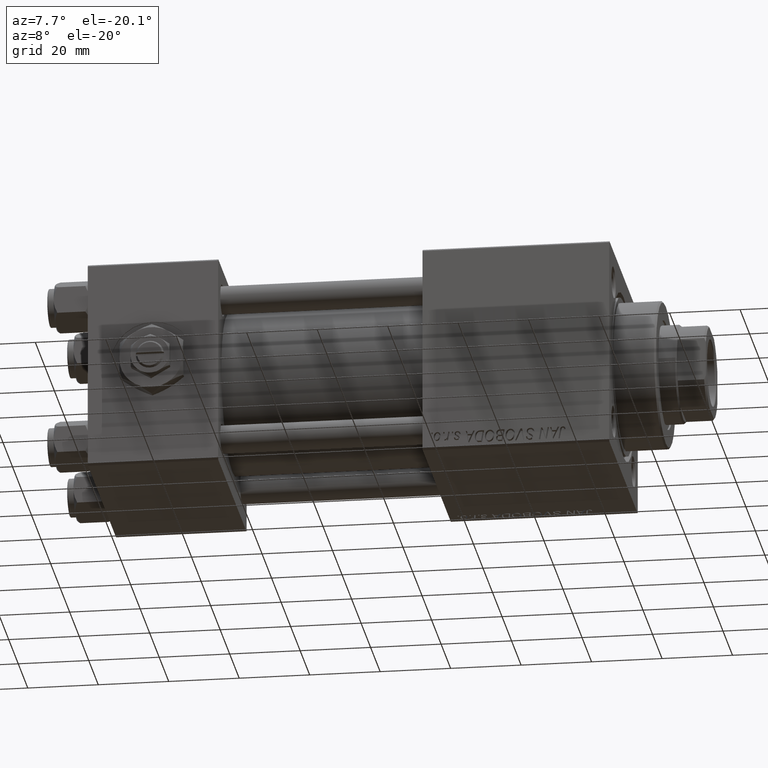
[diagram: clean part render]
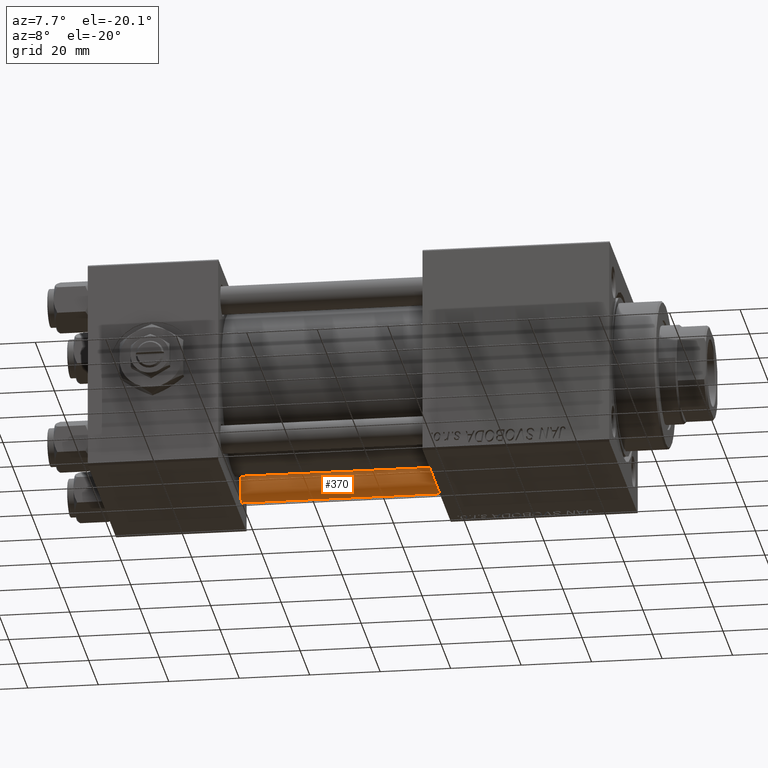
[diagram: same view with one face highlighted and labeled with its STEP entity id]
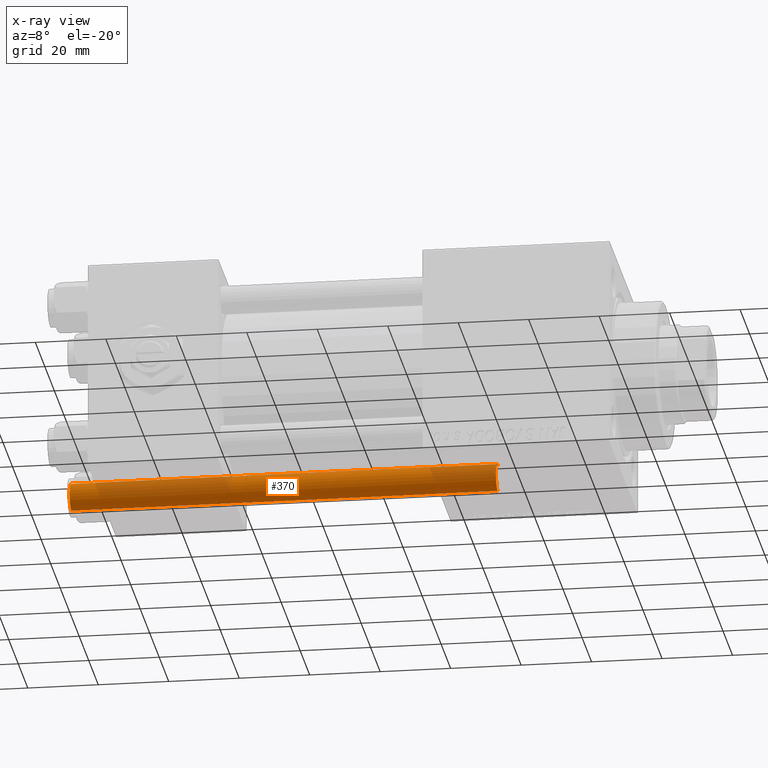
[diagram: x-ray of the same camera — body ghosted, the highlighted face saturated]
A machine part, auxiliary view. The second image highlights one B-rep face of the part: STEP entity #370.
The next image is the same camera in x-ray: the body ghosted, the highlighted face saturated — about 27% of this face is hidden behind the body in this view.
In plain terms, the highlighted cylindrical surface (edge-blend (fillet) strip) has radius 4 mm, axis along (1, -0, 0).
Its self-contained STEP definition (entity closure, byte-faithful):
#370 = ADVANCED_FACE ( 'NONE', ( #30518 ), #42601, .T. ) ;
#1726 = DIRECTION ( 'NONE',  ( 1.000000000000000000, 0.000000000000000000, 0.000000000000000000 ) ) ;
#2747 = EDGE_CURVE ( 'NONE', #40185, #35104, #51224, .T. ) ;
#3697 = CARTESIAN_POINT ( 'NONE',  ( -4.000000000000000000, 0.000000000000000000, 122.0000000000000000 ) ) ;
#5311 = ORIENTED_EDGE ( 'NONE', *, *, #6551, .T. ) ;
#6551 = EDGE_CURVE ( 'NONE', #35104, #34007, #27177, .T. ) ;
#7953 = CARTESIAN_POINT ( 'NONE',  ( 0.000000000000000000, 0.000000000000000000, 121.5000000000000426 ) ) ;
#13198 = EDGE_CURVE ( 'NONE', #42557, #34007, #31383, .T. ) ;
#15759 = DIRECTION ( 'NONE',  ( -0.000000000000000000, -0.000000000000000000, -1.000000000000000000 ) ) ;
#17017 = VECTOR ( 'NONE', #47384, 1000.000000000000000 ) ;
#20022 = DIRECTION ( 'NONE',  ( 1.000000000000000000, 0.000000000000000000, 0.000000000000000000 ) ) ;
#23081 = CARTESIAN_POINT ( 'NONE',  ( 4.000000000000000000, 4.898587196589411843E-16, 0.5000000000000559552 ) ) ;
#23501 = CARTESIAN_POINT ( 'NONE',  ( 4.000000000000000000, 4.898587196589411843E-16, 122.0000000000000000 ) ) ;
#23668 = DIRECTION ( 'NONE',  ( -0.000000000000000000, -0.000000000000000000, -1.000000000000000000 ) ) ;
#25434 = ORIENTED_EDGE ( 'NONE', *, *, #2747, .T. ) ;
#27177 = CIRCLE ( 'NONE', #43098, 4.000000000000000000 ) ;
#28176 = DIRECTION ( 'NONE',  ( 0.000000000000000000, 0.000000000000000000, -1.000000000000000000 ) ) ;
#30518 = FACE_OUTER_BOUND ( 'NONE', #37672, .T. ) ;
#30726 = EDGE_CURVE ( 'NONE', #42557, #40185, #44147, .T. ) ;
#31383 = LINE ( 'NONE', #23501, #17017 ) ;
#34007 = VERTEX_POINT ( 'NONE', #23081 ) ;
#35104 = VERTEX_POINT ( 'NONE', #35581 ) ;
#35581 = CARTESIAN_POINT ( 'NONE',  ( -4.000000000000000000, 0.000000000000000000, 0.5000000000000559552 ) ) ;
#35748 = CARTESIAN_POINT ( 'NONE',  ( 0.000000000000000000, 0.000000000000000000, 122.0000000000000000 ) ) ;
#37277 = ORIENTED_EDGE ( 'NONE', *, *, #30726, .T. ) ;
#37451 = CARTESIAN_POINT ( 'NONE',  ( 0.000000000000000000, 0.000000000000000000, 0.5000000000000559552 ) ) ;
#37672 = EDGE_LOOP ( 'NONE', ( #45501, #37277, #25434, #5311 ) ) ;
#40185 = VERTEX_POINT ( 'NONE', #46648 ) ;
#40212 = DIRECTION ( 'NONE',  ( -1.000000000000000000, 0.000000000000000000, 0.000000000000000000 ) ) ;
#40430 = DIRECTION ( 'NONE',  ( -0.000000000000000000, -0.000000000000000000, 1.000000000000000000 ) ) ;
#42490 = CARTESIAN_POINT ( 'NONE',  ( 4.000000000000000000, 4.898587196589411843E-16, 121.5000000000000426 ) ) ;
#42557 = VERTEX_POINT ( 'NONE', #42490 ) ;
#42601 = CYLINDRICAL_SURFACE ( 'NONE', #45472, 4.000000000000000000 ) ;
#43098 = AXIS2_PLACEMENT_3D ( 'NONE', #37451, #40430, #1726 ) ;
#44147 = CIRCLE ( 'NONE', #48344, 4.000000000000000000 ) ;
#45472 = AXIS2_PLACEMENT_3D ( 'NONE', #35748, #23668, #40212 ) ;
#45501 = ORIENTED_EDGE ( 'NONE', *, *, #13198, .F. ) ;
#46648 = CARTESIAN_POINT ( 'NONE',  ( -4.000000000000000000, 0.000000000000000000, 121.5000000000000426 ) ) ;
#47384 = DIRECTION ( 'NONE',  ( -0.000000000000000000, -0.000000000000000000, -1.000000000000000000 ) ) ;
#48344 = AXIS2_PLACEMENT_3D ( 'NONE', #7953, #28176, #20022 ) ;
#50482 = VECTOR ( 'NONE', #15759, 1000.000000000000000 ) ;
#51224 = LINE ( 'NONE', #3697, #50482 ) ;